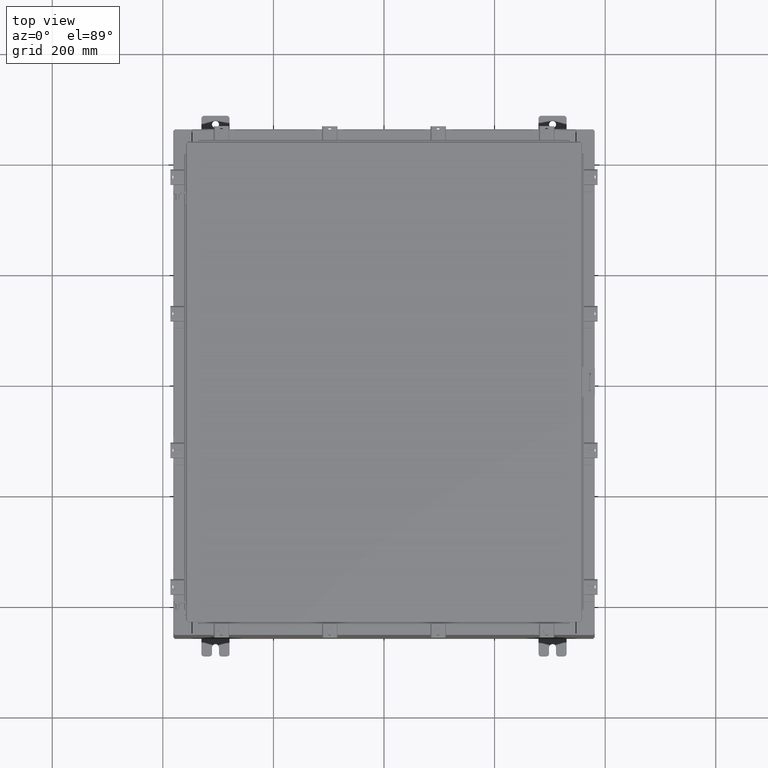
[diagram: clean part render]
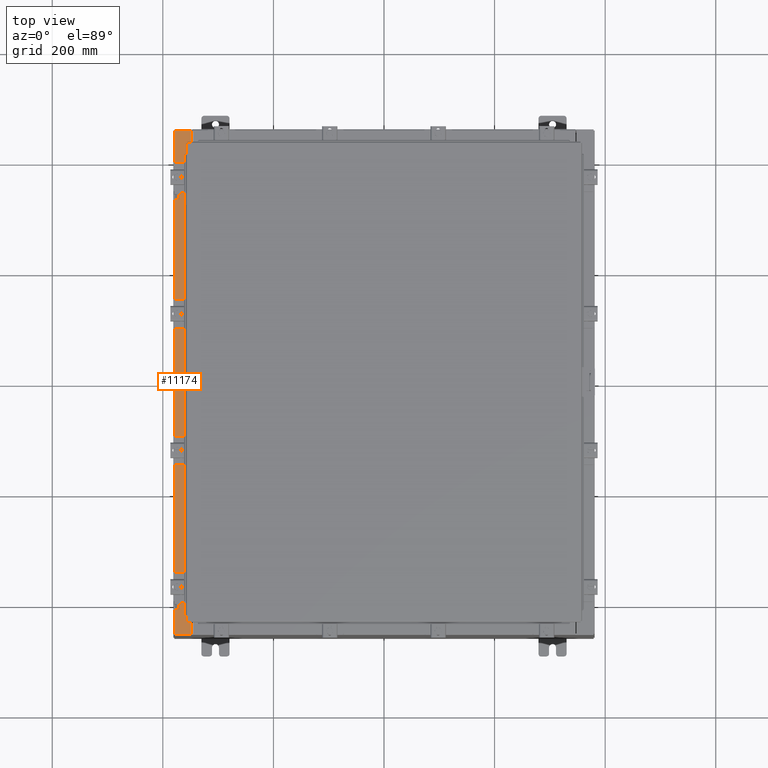
[diagram: same view with one face highlighted and labeled with its STEP entity id]
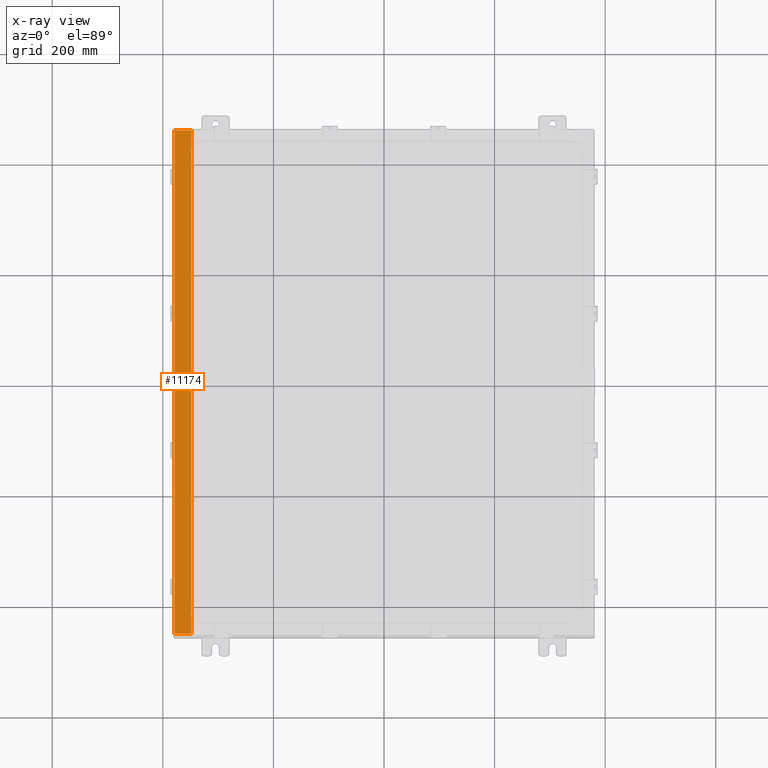
[diagram: x-ray of the same camera — body ghosted, the highlighted face saturated]
A machine part, top view. The second image highlights one B-rep face of the part: STEP entity #11174.
The next image is the same camera in x-ray: the body ghosted, the highlighted face saturated — about 0% of this face is hidden behind the body in this view.
In plain terms, the highlighted planar face has unit normal (0, 0, -1).
Its self-contained STEP definition (entity closure, byte-faithful):
#130 = ORIENTED_EDGE ( 'NONE', *, *, #7666, .F. ) ;
#1007 = EDGE_CURVE ( 'NONE', #2541, #23699, #20962, .T. ) ;
#1314 = FACE_OUTER_BOUND ( 'NONE', #14434, .T. ) ;
#1403 = VECTOR ( 'NONE', #13379, 39.37007874015748100 ) ;
#1475 = EDGE_CURVE ( 'NONE', #9813, #23699, #8217, .T. ) ;
#1998 = ORIENTED_EDGE ( 'NONE', *, *, #6240, .F. ) ;
#2005 = CARTESIAN_POINT ( 'NONE',  ( -13.69970000000005900, 5.781121914483020100E-030, 15.92530000000000400 ) ) ;
#2043 = CARTESIAN_POINT ( 'NONE',  ( -13.75005000000005700, 16.61242500000000200, 15.92530000000000500 ) ) ;
#2329 = ORIENTED_EDGE ( 'NONE', *, *, #21109, .T. ) ;
#2541 = VERTEX_POINT ( 'NONE', #7665 ) ;
#2685 = CARTESIAN_POINT ( 'NONE',  ( -13.71270000000005900, 16.59375000000000000, 15.92530000000000500 ) ) ;
#2755 = ORIENTED_EDGE ( 'NONE', *, *, #14777, .T. ) ;
#2856 = DIRECTION ( 'NONE',  ( 5.349571789159788500E-015, 0.0000000000000000000, -1.000000000000000000 ) ) ;
#2890 = CARTESIAN_POINT ( 'NONE',  ( -13.75005000000005700, 16.63110000000000000, 15.92530000000000400 ) ) ;
#2990 = ORIENTED_EDGE ( 'NONE', *, *, #20454, .F. ) ;
#3247 = VECTOR ( 'NONE', #10532, 39.37007874015748100 ) ;
#3498 = VERTEX_POINT ( 'NONE', #5506 ) ;
#3962 = DIRECTION ( 'NONE',  ( 1.000000000000000000, 0.0000000000000000000, 0.0000000000000000000 ) ) ;
#3991 = VECTOR ( 'NONE', #18662, 39.37007874015748100 ) ;
#4436 = LINE ( 'NONE', #21821, #3247 ) ;
#4904 = ORIENTED_EDGE ( 'NONE', *, *, #7412, .F. ) ;
#5242 = VERTEX_POINT ( 'NONE', #2890 ) ;
#5379 = CARTESIAN_POINT ( 'NONE',  ( -14.91230000000005700, 17.92530000000000000, 15.92529999999999800 ) ) ;
#5419 = EDGE_CURVE ( 'NONE', #24380, #9813, #20662, .T. ) ;
#5421 = CARTESIAN_POINT ( 'NONE',  ( -14.91230000000005700, 17.92530000000000000, 15.92529999999999800 ) ) ;
#5506 = CARTESIAN_POINT ( 'NONE',  ( -13.71270000000005900, 16.59375000000000000, 15.92530000000000500 ) ) ;
#6240 = EDGE_CURVE ( 'NONE', #3498, #13158, #13960, .T. ) ;
#6405 = VERTEX_POINT ( 'NONE', #23842 ) ;
#6956 = DIRECTION ( 'NONE',  ( 1.000000000000000000, -4.340572780400098900E-014, 0.0000000000000000000 ) ) ;
#7069 = CIRCLE ( 'NONE', #22088, 0.01867499999999949400 ) ;
#7272 = VERTEX_POINT ( 'NONE', #5379 ) ;
#7412 = EDGE_CURVE ( 'NONE', #5242, #11900, #7069, .T. ) ;
#7611 = ORIENTED_EDGE ( 'NONE', *, *, #1007, .T. ) ;
#7665 = CARTESIAN_POINT ( 'NONE',  ( -13.69970000000005900, -17.92530000000000000, 15.92530000000000400 ) ) ;
#7666 = EDGE_CURVE ( 'NONE', #11900, #3498, #17554, .T. ) ;
#7776 = DIRECTION ( 'NONE',  ( 4.219889424208582700E-031, 1.000000000000000000, 2.257460141711997900E-045 ) ) ;
#7963 = VECTOR ( 'NONE', #6956, 39.37007874015748100 ) ;
#8064 = EDGE_CURVE ( 'NONE', #11915, #5242, #17996, .T. ) ;
#8217 = LINE ( 'NONE', #18295, #7963 ) ;
#8438 = LINE ( 'NONE', #5421, #3991 ) ;
#9159 = ORIENTED_EDGE ( 'NONE', *, *, #1475, .F. ) ;
#9462 = VECTOR ( 'NONE', #23610, 39.37007874015748100 ) ;
#9622 = VECTOR ( 'NONE', #22954, 39.37007874015748100 ) ;
#9813 = VERTEX_POINT ( 'NONE', #15827 ) ;
#9831 = DIRECTION ( 'NONE',  ( -1.000000000000000000, -4.340572780400098900E-014, 0.0000000000000000000 ) ) ;
#10532 = DIRECTION ( 'NONE',  ( -1.000000000000000000, -1.087045829762337300E-031, -5.349571789159789300E-015 ) ) ;
#10933 = CARTESIAN_POINT ( 'NONE',  ( -13.75005000000005700, -16.61242500000000200, 15.92530000000000500 ) ) ;
#11023 = CARTESIAN_POINT ( 'NONE',  ( -13.69970000000005900, 16.63110000000000400, 15.92530000000000400 ) ) ;
#11043 = LINE ( 'NONE', #22924, #14887 ) ;
#11174 = ADVANCED_FACE ( 'NONE', ( #1314 ), #14214, .F. ) ;
#11322 = EDGE_CURVE ( 'NONE', #6405, #7272, #8438, .T. ) ;
#11900 = VERTEX_POINT ( 'NONE', #14825 ) ;
#11915 = VERTEX_POINT ( 'NONE', #11023 ) ;
#12202 = AXIS2_PLACEMENT_3D ( 'NONE', #21716, #2856, #16099 ) ;
#12320 = CARTESIAN_POINT ( 'NONE',  ( -13.75005000000005700, 16.59375000000000000, 15.92530000000000500 ) ) ;
#12848 = DIRECTION ( 'NONE',  ( 1.000000000000000000, 0.0000000000000000000, 0.0000000000000000000 ) ) ;
#13158 = VERTEX_POINT ( 'NONE', #17441 ) ;
#13379 = DIRECTION ( 'NONE',  ( 4.219889424208582700E-031, 1.000000000000000000, 2.257460141711997900E-045 ) ) ;
#13960 = LINE ( 'NONE', #2685, #23999 ) ;
#14039 = DIRECTION ( 'NONE',  ( -0.0000000000000000000, -1.000000000000000000, -0.0000000000000000000 ) ) ;
#14214 = PLANE ( 'NONE',  #12202 ) ;
#14434 = EDGE_LOOP ( 'NONE', ( #24376, #19540, #2755, #23529, #2329, #7611, #9159, #21722, #2990, #1998, #130, #4904 ) ) ;
#14777 = EDGE_CURVE ( 'NONE', #19008, #7272, #4436, .T. ) ;
#14825 = CARTESIAN_POINT ( 'NONE',  ( -13.75005000000005700, 16.59375000000000000, 15.92530000000000400 ) ) ;
#14887 = VECTOR ( 'NONE', #19146, 39.37007874015748100 ) ;
#15300 = DIRECTION ( 'NONE',  ( -5.349571789159788500E-015, -0.0000000000000000000, 1.000000000000000000 ) ) ;
#15827 = CARTESIAN_POINT ( 'NONE',  ( -13.75005000000005700, -16.63110000000000000, 15.92530000000000400 ) ) ;
#16099 = DIRECTION ( 'NONE',  ( -1.000000000000000000, 0.0000000000000000000, -5.349571789159788500E-015 ) ) ;
#16322 = LINE ( 'NONE', #17268, #20769 ) ;
#16964 = CARTESIAN_POINT ( 'NONE',  ( -13.69970000000005900, 17.92530000000000000, 15.92530000000000400 ) ) ;
#17268 = CARTESIAN_POINT ( 'NONE',  ( -13.69970000000005900, 5.781121914483020100E-030, 15.92530000000000400 ) ) ;
#17398 = VECTOR ( 'NONE', #9831, 39.37007874015748100 ) ;
#17441 = CARTESIAN_POINT ( 'NONE',  ( -13.71270000000005900, -16.59375000000000000, 15.92530000000000500 ) ) ;
#17554 = LINE ( 'NONE', #12320, #9462 ) ;
#17996 = LINE ( 'NONE', #21124, #17398 ) ;
#18295 = CARTESIAN_POINT ( 'NONE',  ( -13.75005000000005700, -16.63110000000000000, 15.92530000000000500 ) ) ;
#18662 = DIRECTION ( 'NONE',  ( -0.0000000000000000000, 1.000000000000000000, -0.0000000000000000000 ) ) ;
#19008 = VERTEX_POINT ( 'NONE', #16964 ) ;
#19146 = DIRECTION ( 'NONE',  ( 1.000000000000000000, -4.861730685829018000E-063, 5.349571789159789300E-015 ) ) ;
#19171 = CARTESIAN_POINT ( 'NONE',  ( -13.71270000000005900, -16.59375000000000000, 15.92530000000000500 ) ) ;
#19540 = ORIENTED_EDGE ( 'NONE', *, *, #21825, .T. ) ;
#19658 = LINE ( 'NONE', #19171, #9622 ) ;
#20454 = EDGE_CURVE ( 'NONE', #13158, #24380, #19658, .T. ) ;
#20662 = CIRCLE ( 'NONE', #23470, 0.01867499999999949400 ) ;
#20769 = VECTOR ( 'NONE', #7776, 39.37007874015748100 ) ;
#20962 = LINE ( 'NONE', #2005, #1403 ) ;
#21109 = EDGE_CURVE ( 'NONE', #6405, #2541, #11043, .T. ) ;
#21124 = CARTESIAN_POINT ( 'NONE',  ( -13.69970000000005900, 16.63110000000000400, 15.92530000000000500 ) ) ;
#21716 = CARTESIAN_POINT ( 'NONE',  ( -8.545434926991838700E-014, 0.0000000000000000000, 15.92530000000007800 ) ) ;
#21722 = ORIENTED_EDGE ( 'NONE', *, *, #5419, .F. ) ;
#21821 = CARTESIAN_POINT ( 'NONE',  ( -8.545434926991838700E-014, 17.92530000000000000, 15.92530000000007800 ) ) ;
#21825 = EDGE_CURVE ( 'NONE', #11915, #19008, #16322, .T. ) ;
#22088 = AXIS2_PLACEMENT_3D ( 'NONE', #2043, #15300, #3962 ) ;
#22924 = CARTESIAN_POINT ( 'NONE',  ( -8.545434926991838700E-014, -17.92530000000000000, 15.92530000000007800 ) ) ;
#22954 = DIRECTION ( 'NONE',  ( -1.000000000000000000, 0.0000000000000000000, 0.0000000000000000000 ) ) ;
#23470 = AXIS2_PLACEMENT_3D ( 'NONE', #10933, #24133, #12848 ) ;
#23529 = ORIENTED_EDGE ( 'NONE', *, *, #11322, .F. ) ;
#23610 = DIRECTION ( 'NONE',  ( 1.000000000000000000, 0.0000000000000000000, 0.0000000000000000000 ) ) ;
#23699 = VERTEX_POINT ( 'NONE', #23982 ) ;
#23842 = CARTESIAN_POINT ( 'NONE',  ( -14.91230000000005700, -17.92530000000000000, 15.92529999999999800 ) ) ;
#23982 = CARTESIAN_POINT ( 'NONE',  ( -13.69970000000005900, -16.63110000000000400, 15.92530000000000400 ) ) ;
#23999 = VECTOR ( 'NONE', #14039, 39.37007874015748100 ) ;
#24133 = DIRECTION ( 'NONE',  ( -5.349571789159788500E-015, -0.0000000000000000000, 1.000000000000000000 ) ) ;
#24365 = CARTESIAN_POINT ( 'NONE',  ( -13.75005000000005700, -16.59375000000000000, 15.92530000000000400 ) ) ;
#24376 = ORIENTED_EDGE ( 'NONE', *, *, #8064, .F. ) ;
#24380 = VERTEX_POINT ( 'NONE', #24365 ) ;